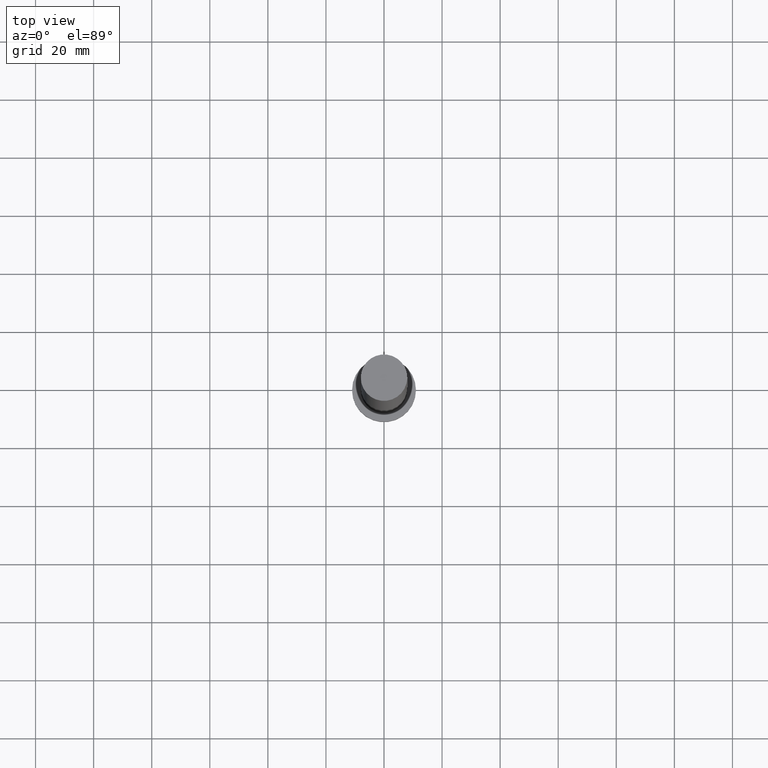
[diagram: clean part render]
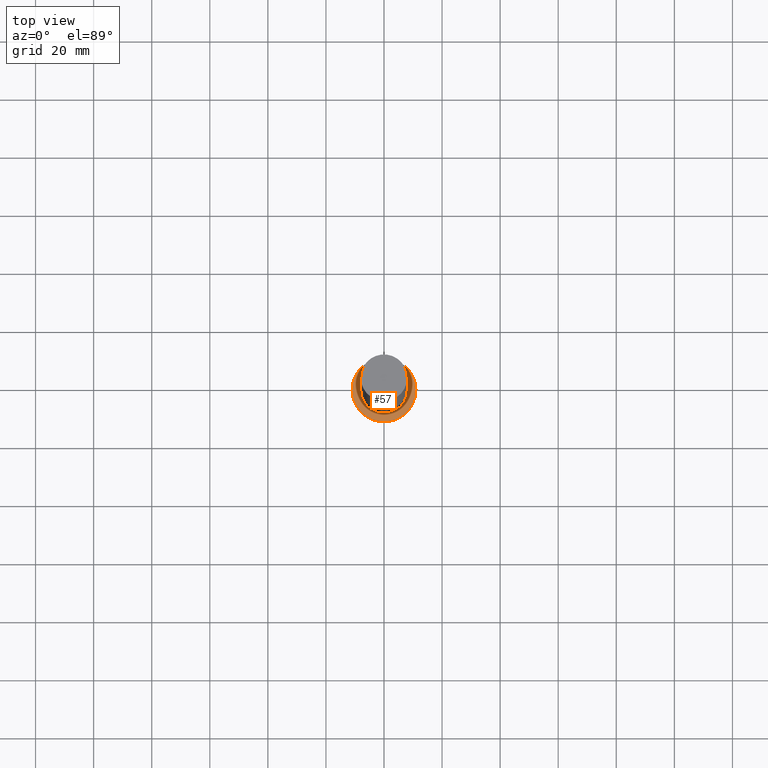
[diagram: same view with one face highlighted and labeled with its STEP entity id]
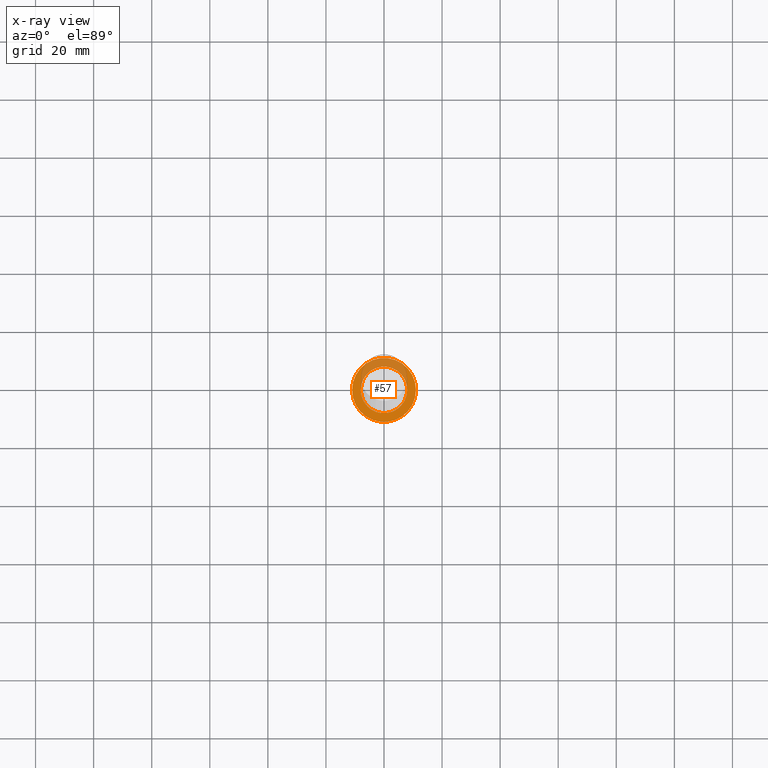
[diagram: x-ray of the same camera — body ghosted, the highlighted face saturated]
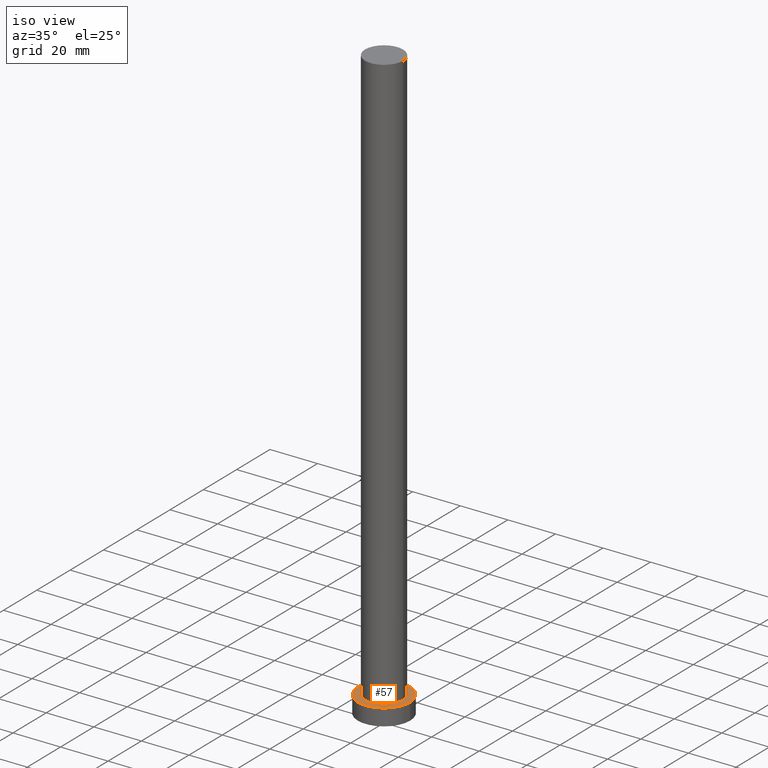
[diagram: same view with one face highlighted and labeled with its STEP entity id]
A machine part, top view. The second image highlights one B-rep face of the part: STEP entity #57.
The next image is the same camera in x-ray: the body ghosted, the highlighted face saturated — about 31% of this face is hidden behind the body in this view.
A second angle (iso view) of the same face is appended — the face is thin or edge-on in the first view.
In plain terms, the highlighted planar face has unit normal (0, 0, 1).
Its self-contained STEP definition (entity closure, byte-faithful):
#5 = AXIS2_PLACEMENT_3D ( 'NONE', #46, #47, #141 ) ;
#9 = DIRECTION ( 'NONE',  ( 1.000000000000000000, 0.000000000000000000, 0.000000000000000000 ) ) ;
#13 = VERTEX_POINT ( 'NONE', #60 ) ;
#22 = DIRECTION ( 'NONE',  ( 1.000000000000000000, 0.000000000000000000, -0.000000000000000000 ) ) ;
#37 = VERTEX_POINT ( 'NONE', #67 ) ;
#39 = CIRCLE ( 'NONE', #71, 11.00000000000000000 ) ;
#46 = CARTESIAN_POINT ( 'NONE',  ( 0.000000000000000000, 0.000000000000000000, 7.000000000000000000 ) ) ;
#47 = DIRECTION ( 'NONE',  ( 0.000000000000000000, 0.000000000000000000, 1.000000000000000000 ) ) ;
#48 = CARTESIAN_POINT ( 'NONE',  ( 0.000000000000000000, 0.000000000000000000, 7.000000000000000000 ) ) ;
#50 = ORIENTED_EDGE ( 'NONE', *, *, #117, .F. ) ;
#57 = ADVANCED_FACE ( 'NONE', ( #106, #124 ), #127, .T. ) ;
#60 = CARTESIAN_POINT ( 'NONE',  ( -11.00000000000000000, 0.000000000000000000, 7.000000000000000000 ) ) ;
#67 = CARTESIAN_POINT ( 'NONE',  ( -8.000000000000000000, 0.000000000000000000, 7.000000000000000000 ) ) ;
#70 = AXIS2_PLACEMENT_3D ( 'NONE', #208, #168, #93 ) ;
#71 = AXIS2_PLACEMENT_3D ( 'NONE', #186, #209, #9 ) ;
#73 = ORIENTED_EDGE ( 'NONE', *, *, #249, .F. ) ;
#84 = CARTESIAN_POINT ( 'NONE',  ( 11.00000000000000000, 1.347111479062088405E-15, 7.000000000000000000 ) ) ;
#88 = ORIENTED_EDGE ( 'NONE', *, *, #254, .T. ) ;
#90 = CARTESIAN_POINT ( 'NONE',  ( 0.000000000000000000, 0.000000000000000000, 7.000000000000000000 ) ) ;
#93 = DIRECTION ( 'NONE',  ( 1.000000000000000000, 0.000000000000000000, 0.000000000000000000 ) ) ;
#106 = FACE_BOUND ( 'NONE', #195, .T. ) ;
#108 = AXIS2_PLACEMENT_3D ( 'NONE', #90, #228, #110 ) ;
#110 = DIRECTION ( 'NONE',  ( 1.000000000000000000, 0.000000000000000000, 0.000000000000000000 ) ) ;
#117 = EDGE_CURVE ( 'NONE', #37, #177, #152, .T. ) ;
#120 = VERTEX_POINT ( 'NONE', #84 ) ;
#124 = FACE_OUTER_BOUND ( 'NONE', #233, .T. ) ;
#127 = PLANE ( 'NONE',  #198 ) ;
#141 = DIRECTION ( 'NONE',  ( 1.000000000000000000, 0.000000000000000000, 0.000000000000000000 ) ) ;
#152 = CIRCLE ( 'NONE', #5, 8.000000000000000000 ) ;
#168 = DIRECTION ( 'NONE',  ( 0.000000000000000000, 0.000000000000000000, 1.000000000000000000 ) ) ;
#177 = VERTEX_POINT ( 'NONE', #207 ) ;
#186 = CARTESIAN_POINT ( 'NONE',  ( 0.000000000000000000, 0.000000000000000000, 7.000000000000000000 ) ) ;
#195 = EDGE_LOOP ( 'NONE', ( #50, #73 ) ) ;
#198 = AXIS2_PLACEMENT_3D ( 'NONE', #48, #219, #22 ) ;
#207 = CARTESIAN_POINT ( 'NONE',  ( 8.000000000000000000, 9.797174393178825657E-16, 7.000000000000000000 ) ) ;
#208 = CARTESIAN_POINT ( 'NONE',  ( 0.000000000000000000, 0.000000000000000000, 7.000000000000000000 ) ) ;
#209 = DIRECTION ( 'NONE',  ( 0.000000000000000000, 0.000000000000000000, 1.000000000000000000 ) ) ;
#215 = CIRCLE ( 'NONE', #108, 8.000000000000000000 ) ;
#219 = DIRECTION ( 'NONE',  ( 0.000000000000000000, 0.000000000000000000, 1.000000000000000000 ) ) ;
#226 = EDGE_CURVE ( 'NONE', #120, #13, #39, .T. ) ;
#228 = DIRECTION ( 'NONE',  ( 0.000000000000000000, 0.000000000000000000, 1.000000000000000000 ) ) ;
#231 = ORIENTED_EDGE ( 'NONE', *, *, #226, .T. ) ;
#233 = EDGE_LOOP ( 'NONE', ( #88, #231 ) ) ;
#248 = CIRCLE ( 'NONE', #70, 11.00000000000000000 ) ;
#249 = EDGE_CURVE ( 'NONE', #177, #37, #215, .T. ) ;
#254 = EDGE_CURVE ( 'NONE', #13, #120, #248, .T. ) ;